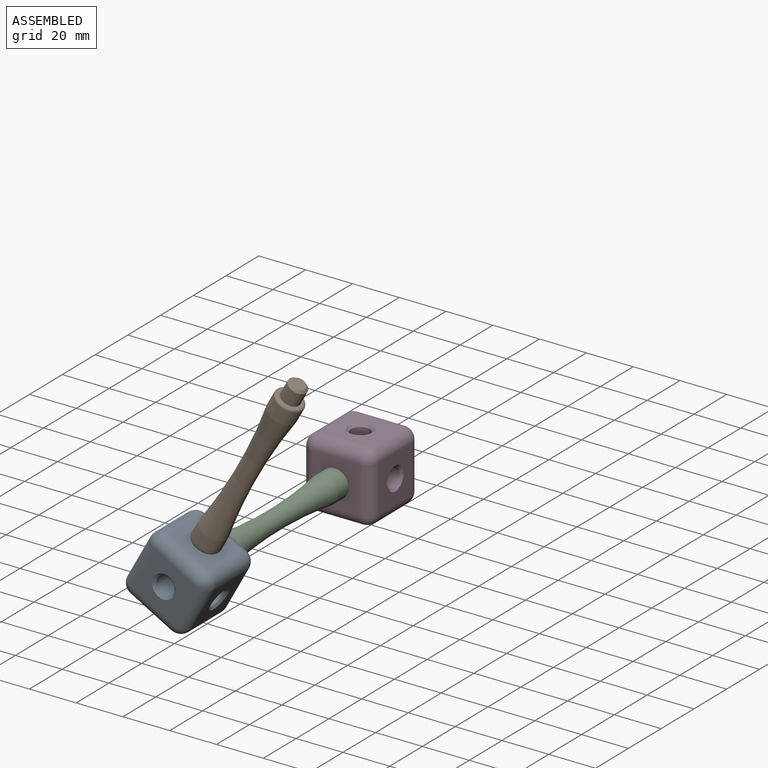
[diagram: assembled view]
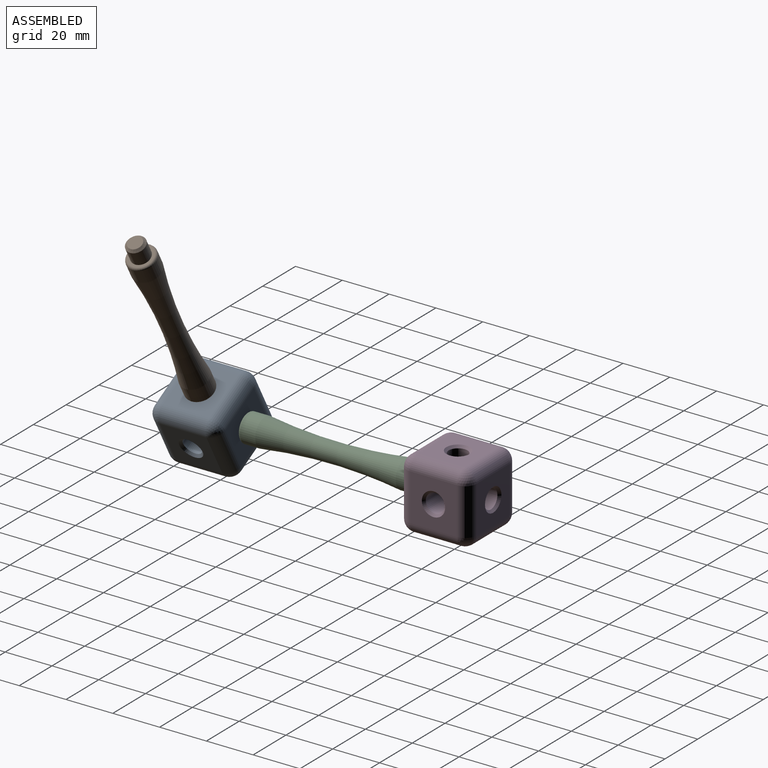
[diagram: assembled view, second angle]
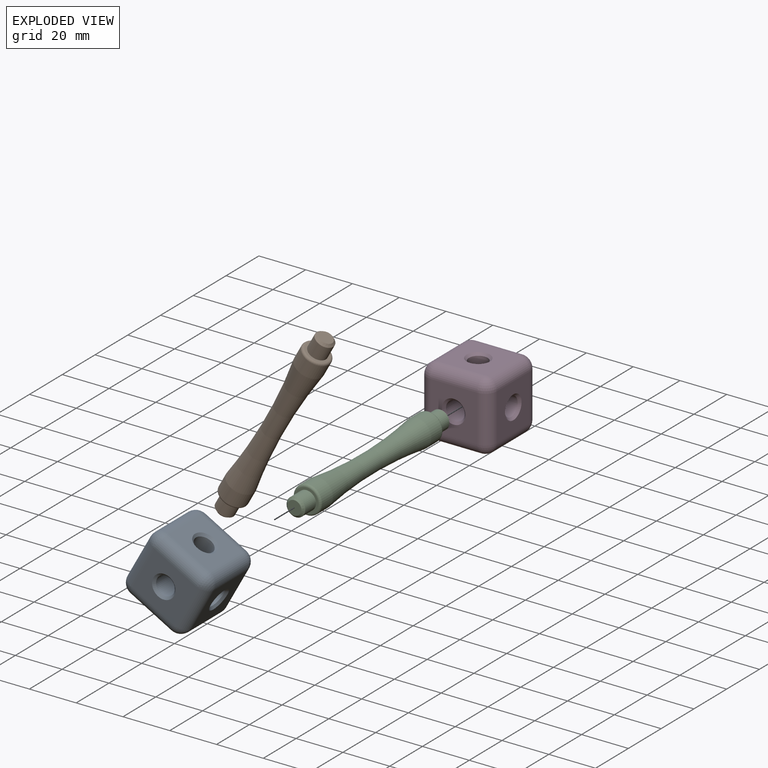
[diagram: exploded view]
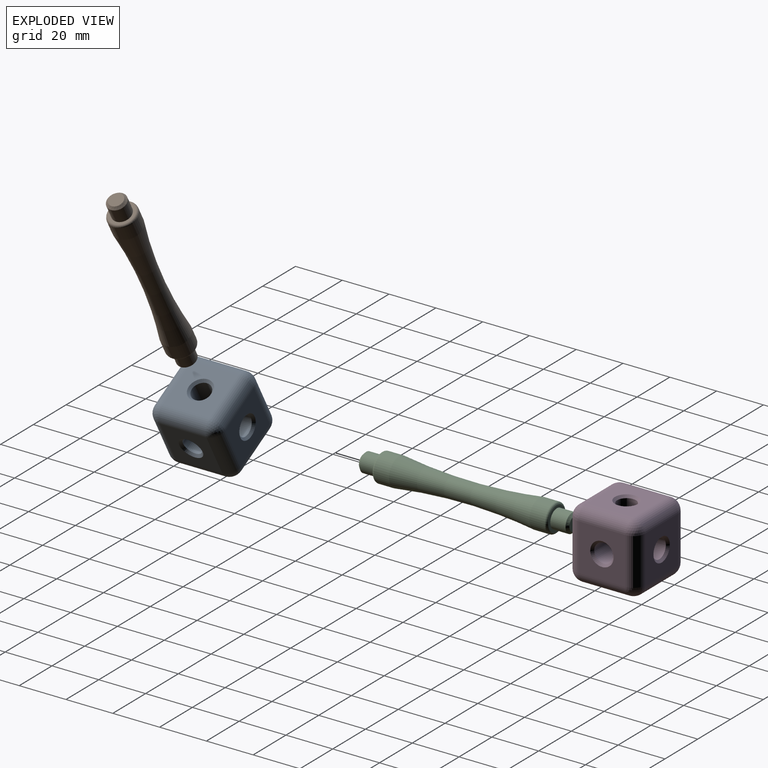
[diagram: exploded view, second angle]
ASSEMBLY  parts=4 mates=3
PART A: 38 faces, bbox 30x30x30 mm
  f0: cylinder r=4mm len=11.17mm, axis (0,-1,0), area 261.3mm2, adj f2,f3,f10,f11,f37
  f1: cylinder r=4mm len=11.17mm, axis (0,-1,0), area 261.3mm2, adj f2,f3,f10,f11,f35
  f2: cylinder r=4mm len=11.17mm, axis (-1,0,0), area 261.3mm2, adj f0,f1,f10,f11,f32
  f3: cylinder r=4mm len=11.17mm, axis (-1,0,0), area 261.3mm2, adj f0,f1,f10,f11,f33
  f4: plane 20x20mm, normal (1,0,0), area 321.5mm2, adj f20,f25,f28,f31,f32
  f5: plane 20x20mm, normal (0,0,1), area 321.5mm2, adj f17,f26,f27,f31,f34
  f6: plane 20x20mm, normal (-1,0,0), area 321.5mm2, adj f12,f16,f17,f18,f33
  f7: plane 20x20mm, normal (0,0,-1), area 321.5mm2, adj f12,f15,f19,f20,f36
  f8: plane 20x20mm, normal (0,-1,0), area 321.5mm2, adj f15,f16,f25,f26,f35
  f9: plane 20x20mm, normal (0,1,0), area 321.5mm2, adj f18,f19,f27,f28,f37
  f10: cylinder r=4mm len=11.17mm, axis (0,0,1), area 261.3mm2, adj f0,f1,f2,f3,f34
  f11: cylinder r=4mm len=11.17mm, axis (0,0,1), area 261.3mm2, adj f0,f1,f2,f3,f36
  f12: cylinder r=5mm len=20mm, axis (0,-1,0), area 157.1mm2, adj f6,f7,f13,f14
  f13: sphere r=5mm, area 39.3mm2, adj f12,f15,f16
  f14: sphere r=5mm, area 39.3mm2, adj f12,f18,f19
  f15: cylinder r=5mm len=20mm, axis (-1,0,0), area 157.1mm2, adj f7,f8,f13,f21
  f16: cylinder r=5mm len=20mm, axis (0,0,1), area 157.1mm2, adj f6,f8,f13,f22
  f17: cylinder r=5mm len=20mm, axis (0,1,0), area 157.1mm2, adj f5,f6,f22,f23
  f18: cylinder r=5mm len=20mm, axis (0,0,-1), area 157.1mm2, adj f6,f9,f14,f23
  f19: cylinder r=5mm len=20mm, axis (1,0,0), area 157.1mm2, adj f7,f9,f14,f24
  f20: cylinder r=5mm len=20mm, axis (0,1,0), area 157.1mm2, adj f4,f7,f21,f24
  f21: sphere r=5mm, area 39.3mm2, adj f15,f20,f25
  f22: sphere r=5mm, area 39.3mm2, adj f16,f17,f26
  f23: sphere r=5mm, area 39.3mm2, adj f17,f18,f27
  f24: sphere r=5mm, area 39.3mm2, adj f19,f20,f28
  f25: cylinder r=5mm len=20mm, axis (0,0,-1), area 157.1mm2, adj f4,f8,f21,f29
  f26: cylinder r=5mm len=20mm, axis (1,0,0), area 157.1mm2, adj f5,f8,f22,f29
  f27: cylinder r=5mm len=20mm, axis (-1,0,0), area 157.1mm2, adj f5,f9,f23,f30
  f28: cylinder r=5mm len=20mm, axis (0,0,1), area 157.1mm2, adj f4,f9,f24,f30
  f29: sphere r=5mm, area 39.3mm2, adj f25,f26,f31
  f30: sphere r=5mm, area 39.3mm2, adj f27,f28,f31
  f31: cylinder r=5mm len=20mm, axis (0,-1,0), area 157.1mm2, adj f4,f5,f29,f30
  f32: cone r=5mm half-angle=45deg, axis (1,0,0), area 40mm2, adj f2,f4
  f33: cone r=4mm half-angle=45deg, axis (-1,0,0), area 40mm2, adj f3,f6
  f34: cone r=4mm half-angle=45deg, axis (0,0,1), area 40mm2, adj f5,f10
  f35: cone r=4mm half-angle=45deg, axis (0,-1,0), area 40mm2, adj f1,f8
  f36: cone r=5mm half-angle=45deg, axis (0,0,-1), area 40mm2, adj f7,f11
  f37: cone r=5mm half-angle=45deg, axis (0,1,0), area 40mm2, adj f0,f9
PART B: 13 faces, bbox 320.9x150.5x150.5 mm
  f0: plane 6x6mm, normal (-1,0,0), area 28.3mm2, adj f10
  f1: plane 6x6mm, normal (1,0,0), area 28.3mm2, adj f9
  f2: cylinder r=4mm len=8mm, axis (-1,0,0), area 163.4mm2, adj f3,f9
  f3: plane 10x10mm, normal (1,0,0), area 28.3mm2, adj f2,f11
  f4: cylinder r=6mm len=12mm, axis (-1,0,0), area 245mm2, adj f5,f11
  f5: torus R=230mm, axis (-1,0,0), area 1764.6mm2, adj f4,f6
  f6: cylinder r=6mm len=12mm, axis (-1,0,0), area 245mm2, adj f5,f12
  f7: plane 10x10mm, normal (-1,0,0), area 28.3mm2, adj f8,f12
  f8: cylinder r=4mm len=8mm, axis (-1,0,0), area 163.4mm2, adj f7,f10
  f9: cone r=4mm half-angle=45deg, axis (-1,0,0), area 31.1mm2, adj f1,f2
  f10: cone r=3mm half-angle=45deg, axis (1,0,0), area 31.1mm2, adj f0,f8
  f11: torus R=5mm, axis (-1,0,0), area 55.6mm2, adj f3,f4
  f12: torus R=5mm, axis (-1,0,0), area 55.6mm2, adj f6,f7
PART C: same geometry as B
PART D: same geometry as A
PLACE A rot(axis=(0.86,0,0.51),180deg) t=(-3.8,-106.09,1.65)mm
PLACE B rot(axis=(0,1,0),119deg) t=(-29.26,-106.09,-44.27)mm
PLACE C rot(axis=(-0.58,-0.58,0.58),120deg) t=(-3.8,51.41,1.65)mm
PLACE D t=(-3.8,-1.09,1.65)mm fixed
MATE fastened D.f0 <-> C.f2  axis (0,-1,0) through (-3.8,-16.09,1.65)mm
MATE revolute C.f2 <-> A.f0  axis (0,-1,0) through (-3.8,-91.09,1.65)mm
MATE fastened B.f2 <-> A.f32  axis (0.48,0,0.87) through (3.47,-106.09,14.77)mm
